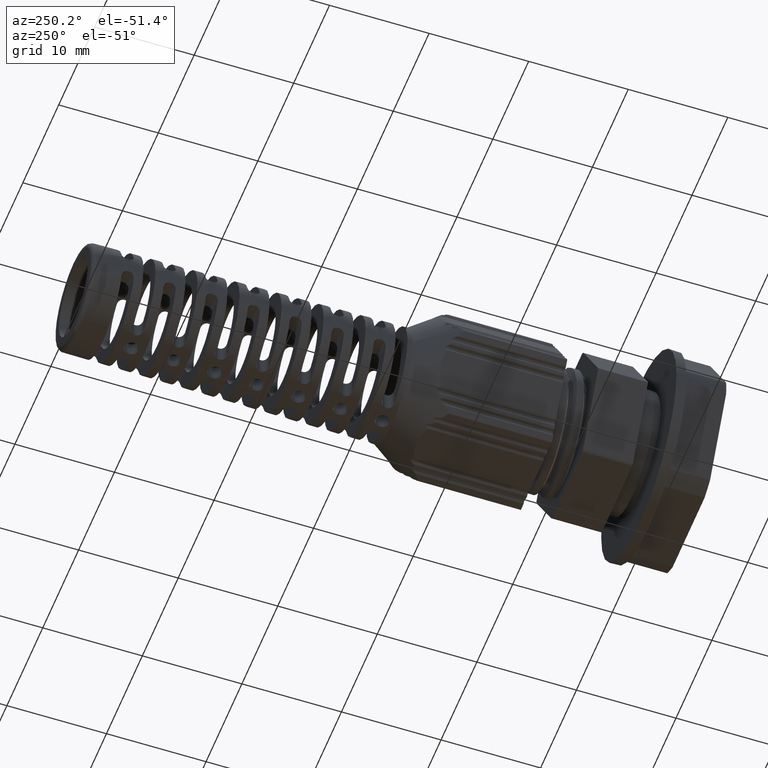
[diagram: clean part render]
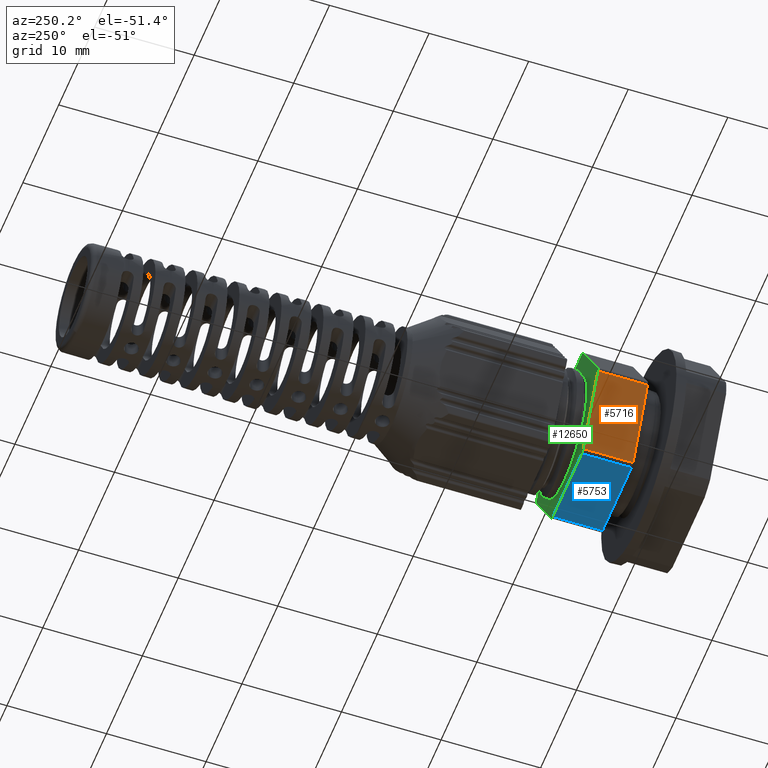
[diagram: same view with three faces highlighted in distinct colors, each labeled with its STEP entity id]
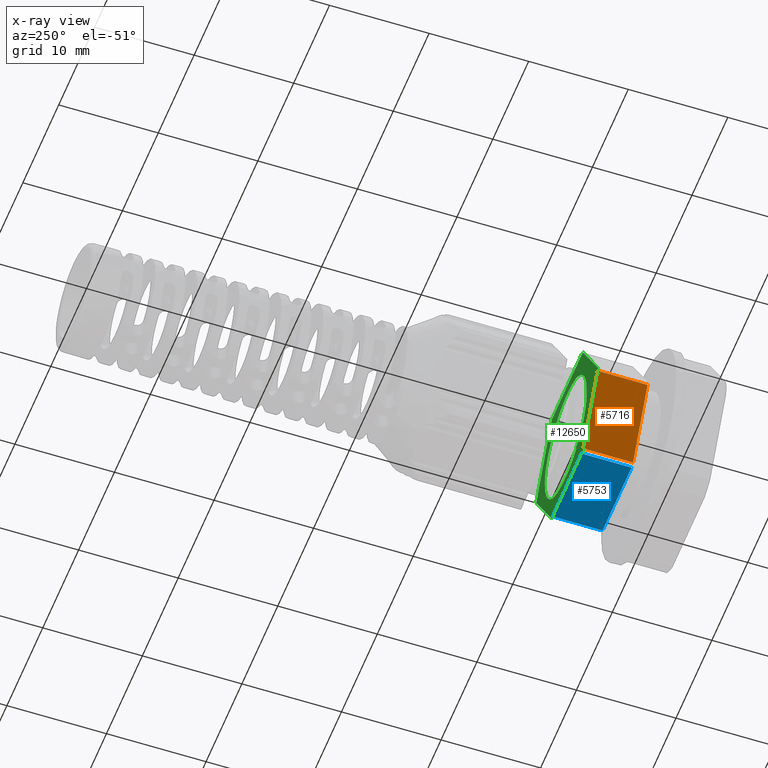
[diagram: x-ray of the same camera — body ghosted, the three highlighted faces saturated]
A machine part, auxiliary view with three faces highlighted in distinct colors.
The next image is the same camera in x-ray (body ghosted, the three faces saturated) — at least one of them is partly hidden behind the body in this view.
Their STEP definitions:

[orange] entity #5716 — the highlighted planar face has unit normal (0.866, -0, 0.5).
#2892 = FACE_OUTER_BOUND ( 'NONE', #20843, .T. ) ;
#2916 = DIRECTION ( 'NONE',  ( 0.8660254037844383700, -0.0000000000000000000, 0.5000000000000004400 ) ) ;
#2925 = DIRECTION ( 'NONE',  ( 0.5000000000000004400, 0.0000000000000000000, -0.8660254037844383700 ) ) ;
#2937 = CARTESIAN_POINT ( 'NONE',  ( -8.660254037844390900, -6.966593736519716800, -4.462418573949797700E-018 ) ) ;
#2939 = PLANE ( 'NONE',  #20506 ) ;
#5716 = ADVANCED_FACE ( 'NONE', ( #2892 ), #2939, .F. ) ;
#6930 = EDGE_CURVE ( 'NONE', #18329, #18250, #10678, .T. ) ;
#6942 = EDGE_CURVE ( 'NONE', #18184, #18329, #10726, .T. ) ;
#6945 = EDGE_CURVE ( 'NONE', #18250, #18301, #10729, .T. ) ;
#6983 = EDGE_CURVE ( 'NONE', #18301, #18184, #11021, .T. ) ;
#7301 = VECTOR ( 'NONE', #10674, 1000.000000000000000 ) ;
#7314 = VECTOR ( 'NONE', #10761, 1000.000000000000100 ) ;
#7331 = VECTOR ( 'NONE', #10733, 1000.000000000000100 ) ;
#7371 = VECTOR ( 'NONE', #11007, 1000.000000000000000 ) ;
#10674 = DIRECTION ( 'NONE',  ( 0.0000000000000000000, 1.000000000000000000, 0.0000000000000000000 ) ) ;
#10678 = LINE ( 'NONE', #10703, #7301 ) ;
#10703 = CARTESIAN_POINT ( 'NONE',  ( -4.474464586219600200, -6.966593736519716800, -7.250000000000000000 ) ) ;
#10726 = LINE ( 'NONE', #10760, #7314 ) ;
#10729 = LINE ( 'NONE', #10730, #7331 ) ;
#10730 = CARTESIAN_POINT ( 'NONE',  ( -4.474464586219598400, -1.876593736519716300, -7.250000000000000000 ) ) ;
#10733 = DIRECTION ( 'NONE',  ( -0.5000000000000006700, 0.0000000000000000000, 0.8660254037844382600 ) ) ;
#10760 = CARTESIAN_POINT ( 'NONE',  ( -8.515916470546983400, -6.876593736519719600, -0.2499999999999994700 ) ) ;
#10761 = DIRECTION ( 'NONE',  ( 0.5000000000000002200, 0.0000000000000000000, -0.8660254037844384900 ) ) ;
#10983 = CARTESIAN_POINT ( 'NONE',  ( -8.515916470546985200, -6.966593736519716800, -0.2500000000000004400 ) ) ;
#11007 = DIRECTION ( 'NONE',  ( -0.0000000000000000000, -1.000000000000000000, -0.0000000000000000000 ) ) ;
#11021 = LINE ( 'NONE', #10983, #7371 ) ;
#16820 = ORIENTED_EDGE ( 'NONE', *, *, #6983, .F. ) ;
#16821 = ORIENTED_EDGE ( 'NONE', *, *, #6945, .F. ) ;
#16846 = ORIENTED_EDGE ( 'NONE', *, *, #6942, .F. ) ;
#18184 = VERTEX_POINT ( 'NONE', #20301 ) ;
#18250 = VERTEX_POINT ( 'NONE', #20344 ) ;
#18301 = VERTEX_POINT ( 'NONE', #20251 ) ;
#18329 = VERTEX_POINT ( 'NONE', #20390 ) ;
#20251 = CARTESIAN_POINT ( 'NONE',  ( -8.515916470546985200, -1.876593736519716300, -0.2500000000000000000 ) ) ;
#20301 = CARTESIAN_POINT ( 'NONE',  ( -8.515916470546983400, -6.876593736519719600, -0.2499999999999985300 ) ) ;
#20344 = CARTESIAN_POINT ( 'NONE',  ( -4.474464586219597500, -1.876593736519716300, -7.249999999999999100 ) ) ;
#20390 = CARTESIAN_POINT ( 'NONE',  ( -4.474464586219600200, -6.876593736519719600, -7.250000000000000900 ) ) ;
#20506 = AXIS2_PLACEMENT_3D ( 'NONE', #2937, #2916, #2925 ) ;
#20802 = ORIENTED_EDGE ( 'NONE', *, *, #6930, .F. ) ;
#20843 = EDGE_LOOP ( 'NONE', ( #16846, #16820, #16821, #20802 ) ) ;

[blue] entity #5753 — the highlighted planar face has unit normal (-0, 0, 1).
#3155 = FACE_OUTER_BOUND ( 'NONE', #20869, .T. ) ;
#3222 = DIRECTION ( 'NONE',  ( 1.000000000000000000, 0.0000000000000000000, 2.003086131649545700E-016 ) ) ;
#3245 = DIRECTION ( 'NONE',  ( -2.003086131649545700E-016, 0.0000000000000000000, 1.000000000000000000 ) ) ;
#3260 = CARTESIAN_POINT ( 'NONE',  ( -4.330127018922190100, -6.966593736519716800, -7.500000000000000000 ) ) ;
#3261 = PLANE ( 'NONE',  #20555 ) ;
#5753 = ADVANCED_FACE ( 'NONE', ( #3155 ), #3261, .F. ) ;
#6931 = EDGE_CURVE ( 'NONE', #18204, #18176, #10649, .T. ) ;
#6967 = EDGE_CURVE ( 'NONE', #18333, #18139, #10865, .T. ) ;
#6981 = EDGE_CURVE ( 'NONE', #18176, #18333, #10986, .T. ) ;
#6986 = EDGE_CURVE ( 'NONE', #18139, #18204, #11016, .T. ) ;
#7299 = VECTOR ( 'NONE', #10690, 1000.000000000000000 ) ;
#7349 = VECTOR ( 'NONE', #10981, 1000.000000000000000 ) ;
#7356 = VECTOR ( 'NONE', #10908, 1000.000000000000000 ) ;
#7364 = VECTOR ( 'NONE', #10999, 1000.000000000000000 ) ;
#10649 = LINE ( 'NONE', #10706, #7299 ) ;
#10690 = DIRECTION ( 'NONE',  ( -0.0000000000000000000, -1.000000000000000000, 0.0000000000000000000 ) ) ;
#10706 = CARTESIAN_POINT ( 'NONE',  ( -4.041451884327377000, -6.966593736519716800, -7.500000000000000000 ) ) ;
#10865 = LINE ( 'NONE', #10898, #7356 ) ;
#10898 = CARTESIAN_POINT ( 'NONE',  ( 4.041451884327383200, -6.966593736519716800, -7.499999999999998200 ) ) ;
#10908 = DIRECTION ( 'NONE',  ( 0.0000000000000000000, 1.000000000000000000, -0.0000000000000000000 ) ) ;
#10979 = CARTESIAN_POINT ( 'NONE',  ( 4.041451884327383200, -1.876593736519716300, -7.499999999999998200 ) ) ;
#10981 = DIRECTION ( 'NONE',  ( -1.000000000000000000, 0.0000000000000000000, -2.146163712481656400E-016 ) ) ;
#10986 = LINE ( 'NONE', #11012, #7364 ) ;
#10999 = DIRECTION ( 'NONE',  ( 1.000000000000000000, 0.0000000000000000000, 2.146163712481656400E-016 ) ) ;
#11012 = CARTESIAN_POINT ( 'NONE',  ( -4.041451884327377000, -6.876593736519719600, -7.500000000000000000 ) ) ;
#11016 = LINE ( 'NONE', #10979, #7349 ) ;
#16823 = ORIENTED_EDGE ( 'NONE', *, *, #6981, .F. ) ;
#18139 = VERTEX_POINT ( 'NONE', #20231 ) ;
#18176 = VERTEX_POINT ( 'NONE', #20187 ) ;
#18204 = VERTEX_POINT ( 'NONE', #20336 ) ;
#18333 = VERTEX_POINT ( 'NONE', #20427 ) ;
#20187 = CARTESIAN_POINT ( 'NONE',  ( -4.041451884327377000, -6.876593736519719600, -7.500000000000000000 ) ) ;
#20231 = CARTESIAN_POINT ( 'NONE',  ( 4.041451884327383200, -1.876593736519716300, -7.499999999999998200 ) ) ;
#20336 = CARTESIAN_POINT ( 'NONE',  ( -4.041451884327377000, -1.876593736519716300, -7.500000000000000000 ) ) ;
#20427 = CARTESIAN_POINT ( 'NONE',  ( 4.041451884327383200, -6.876593736519719600, -7.499999999999998200 ) ) ;
#20555 = AXIS2_PLACEMENT_3D ( 'NONE', #3260, #3245, #3222 ) ;
#20796 = ORIENTED_EDGE ( 'NONE', *, *, #6967, .F. ) ;
#20800 = ORIENTED_EDGE ( 'NONE', *, *, #6931, .F. ) ;
#20801 = ORIENTED_EDGE ( 'NONE', *, *, #6986, .F. ) ;
#20869 = EDGE_LOOP ( 'NONE', ( #16823, #20800, #20801, #20796 ) ) ;

[green] entity #12650 — the highlighted planar face has unit normal (0, 1, 0).
#25 = B_SPLINE_CURVE_WITH_KNOTS ( 'NONE', 3,
 ( #8672, #8686, #8673, #8655, #8642, #8658, #8665, #8687, #8675, #8662, #8693, #8694, #8676, #8669, #8638, #8660, #8677, #8641, #8678, #8680, #8640, #8643, #8644, #8645, #8663, #8646, #8656, #8648, #8664, #8649, #8650, #8651, #8652, #8653, #8713, #8710, #8738, #8696, #8742, #8695 ),
 .UNSPECIFIED., .F., .F.,
 ( 4, 2, 2, 2, 2, 2, 2, 2, 2, 2, 2, 2, 2, 2, 2, 2, 2, 2, 2, 4 ),
 ( 0.0000000000000000000, 0.001118475817211991100, 0.002236951634423982100, 0.003355427451635973200, 0.003914665360241968500, 0.004473903268847964300, 0.005592379086059955800, 0.006710854903271948200, 0.007829330720483938800, 0.008947806537695932000, 0.01006628235490792500, 0.01118475817211991700, 0.01174399608072591300, 0.01230323398933190800, 0.01342170980654390000, 0.01398094771514989600, 0.01454018562375589100, 0.01565866144096788100, 0.01677713725817987100, 0.01789561307539186400 ),
 .UNSPECIFIED. ) ;
#44 = B_SPLINE_CURVE_WITH_KNOTS ( 'NONE', 3,
 ( #8294, #8277, #8283, #8284, #8269, #8288, #8295, #8296, #8298, #8344, #8355, #8312, #8313, #8351 ),
 .UNSPECIFIED., .F., .F.,
 ( 4, 2, 2, 2, 2, 2, 4 ),
 ( 2.966130794080888300E-014, 0.001509788860705730400, 0.002264683291043765000, 0.003019577721381800100, 0.004529366582057869700, 0.005284261012395905600, 0.006039155442733941600 ),
 .UNSPECIFIED. ) ;
#45 = B_SPLINE_CURVE_WITH_KNOTS ( 'NONE', 3,
 ( #8768, #8792, #8793, #8782, #8774, #8788, #8765, #8773, #8750, #8778, #8779, #8794, #8776, #8766, #8775, #8777 ),
 .UNSPECIFIED., .F., .F.,
 ( 4, 2, 2, 2, 2, 2, 2, 4 ),
 ( 0.0000000000000000000, 0.001865784484746567900, 0.002798676727119851200, 0.003731568969493134900, 0.004664461211866418500, 0.005597353454239702500, 0.006530245696612987400, 0.007463137938986271400 ),
 .UNSPECIFIED. ) ;
#865 = ORIENTED_EDGE ( 'NONE', *, *, #6149, .F. ) ;
#891 = ORIENTED_EDGE ( 'NONE', *, *, #6046, .F. ) ;
#894 = ORIENTED_EDGE ( 'NONE', *, *, #6945, .T. ) ;
#898 = ORIENTED_EDGE ( 'NONE', *, *, #6982, .T. ) ;
#931 = ORIENTED_EDGE ( 'NONE', *, *, #6953, .T. ) ;
#934 = ORIENTED_EDGE ( 'NONE', *, *, #6938, .T. ) ;
#936 = ORIENTED_EDGE ( 'NONE', *, *, #6926, .T. ) ;
#938 = ORIENTED_EDGE ( 'NONE', *, *, #6962, .T. ) ;
#947 = ORIENTED_EDGE ( 'NONE', *, *, #13072, .T. ) ;
#951 = ORIENTED_EDGE ( 'NONE', *, *, #6987, .T. ) ;
#952 = ORIENTED_EDGE ( 'NONE', *, *, #6980, .T. ) ;
#954 = ORIENTED_EDGE ( 'NONE', *, *, #6986, .T. ) ;
#958 = ORIENTED_EDGE ( 'NONE', *, *, #6985, .T. ) ;
#959 = ORIENTED_EDGE ( 'NONE', *, *, #6969, .T. ) ;
#966 = ORIENTED_EDGE ( 'NONE', *, *, #6964, .T. ) ;
#974 = ORIENTED_EDGE ( 'NONE', *, *, #6141, .F. ) ;
#5063 = CIRCLE ( 'NONE', #5069, 5.450000000000002000 ) ;
#5069 = AXIS2_PLACEMENT_3D ( 'NONE', #16283, #16248, #16278 ) ;
#6046 = EDGE_CURVE ( 'NONE', #18447, #17328, #44, .T. ) ;
#6141 = EDGE_CURVE ( 'NONE', #17328, #17390, #25, .T. ) ;
#6149 = EDGE_CURVE ( 'NONE', #17390, #18399, #45, .T. ) ;
#6495 = AXIS2_PLACEMENT_3D ( 'NONE', #15211, #15188, #15186 ) ;
#6926 = EDGE_CURVE ( 'NONE', #18137, #18149, #7298, .T. ) ;
#6938 = EDGE_CURVE ( 'NONE', #18288, #18137, #10720, .T. ) ;
#6945 = EDGE_CURVE ( 'NONE', #18250, #18301, #10729, .T. ) ;
#6953 = EDGE_CURVE ( 'NONE', #18286, #18335, #7326, .T. ) ;
#6962 = EDGE_CURVE ( 'NONE', #18141, #18286, #10830, .T. ) ;
#6964 = EDGE_CURVE ( 'NONE', #18149, #18331, #10854, .T. ) ;
#6969 = EDGE_CURVE ( 'NONE', #18204, #18250, #7369, .T. ) ;
#6980 = EDGE_CURVE ( 'NONE', #18125, #18288, #7357, .T. ) ;
#6982 = EDGE_CURVE ( 'NONE', #18331, #18139, #7385, .T. ) ;
#6985 = EDGE_CURVE ( 'NONE', #18301, #18141, #7341, .T. ) ;
#6986 = EDGE_CURVE ( 'NONE', #18139, #18204, #11016, .T. ) ;
#6987 = EDGE_CURVE ( 'NONE', #18335, #18125, #10990, .T. ) ;
#7298 = CIRCLE ( 'NONE', #7300, 0.5000000000000011100 ) ;
#7300 = AXIS2_PLACEMENT_3D ( 'NONE', #10624, #10664, #10626 ) ;
#7313 = VECTOR ( 'NONE', #10752, 1000.000000000000200 ) ;
#7326 = CIRCLE ( 'NONE', #7328, 0.5000000000000013300 ) ;
#7328 = AXIS2_PLACEMENT_3D ( 'NONE', #10778, #10789, #10779 ) ;
#7331 = VECTOR ( 'NONE', #10733, 1000.000000000000100 ) ;
#7334 = AXIS2_PLACEMENT_3D ( 'NONE', #11014, #10991, #11009 ) ;
#7335 = AXIS2_PLACEMENT_3D ( 'NONE', #10989, #10992, #10993 ) ;
#7339 = VECTOR ( 'NONE', #10907, 1000.000000000000100 ) ;
#7341 = CIRCLE ( 'NONE', #7335, 0.5000000000000017800 ) ;
#7349 = VECTOR ( 'NONE', #10981, 1000.000000000000000 ) ;
#7357 = CIRCLE ( 'NONE', #7334, 0.5000000000000013300 ) ;
#7368 = VECTOR ( 'NONE', #11077, 1000.000000000000000 ) ;
#7369 = CIRCLE ( 'NONE', #7373, 0.5000000000000013300 ) ;
#7373 = AXIS2_PLACEMENT_3D ( 'NONE', #10909, #10903, #10904 ) ;
#7378 = AXIS2_PLACEMENT_3D ( 'NONE', #10978, #10995, #11025 ) ;
#7382 = VECTOR ( 'NONE', #10839, 1000.000000000000100 ) ;
#7385 = CIRCLE ( 'NONE', #7378, 0.5000000000000004400 ) ;
#8269 = CARTESIAN_POINT ( 'NONE',  ( -5.052525171718411200, -1.876593736519715600, 2.725551681369611700 ) ) ;
#8277 = CARTESIAN_POINT ( 'NONE',  ( -5.400522535838071300, -1.876593736519716300, 1.251446419722394200 ) ) ;
#8283 = CARTESIAN_POINT ( 'NONE',  ( -5.334680694127822400, -1.876593736519716500, 1.750702120231126600 ) ) ;
#8284 = CARTESIAN_POINT ( 'NONE',  ( -5.136291302282396400, -1.876593736519716700, 2.482839622040944300 ) ) ;
#8288 = CARTESIAN_POINT ( 'NONE',  ( -4.855149845458689700, -1.876593736519715800, 3.191575346864452100 ) ) ;
#8294 = CARTESIAN_POINT ( 'NONE',  ( -5.399399570405622100, -1.876593736519716100, 0.7409347333629310300 ) ) ;
#8295 = CARTESIAN_POINT ( 'NONE',  ( -4.741407872960631500, -1.876593736519715200, 3.416221813085697600 ) ) ;
#8296 = CARTESIAN_POINT ( 'NONE',  ( -4.355517749744714200, -1.876593736519715000, 4.065342241823773700 ) ) ;
#8298 = CARTESIAN_POINT ( 'NONE',  ( -4.037329616128909400, -1.876593736519716100, 4.470326232991245900 ) ) ;
#8312 = CARTESIAN_POINT ( 'NONE',  ( -2.917176707469380400, -1.876593736519715600, 5.485278763288281600 ) ) ;
#8313 = CARTESIAN_POINT ( 'NONE',  ( -2.706977998931548800, -1.876593736519711400, 5.630339780015961400 ) ) ;
#8344 = CARTESIAN_POINT ( 'NONE',  ( -3.503276059704807800, -1.876593736519716100, 5.005983523393983800 ) ) ;
#8351 = CARTESIAN_POINT ( 'NONE',  ( -2.488451054552812500, -1.876593736519716500, 5.761798474046722500 ) ) ;
#8355 = CARTESIAN_POINT ( 'NONE',  ( -3.314906790975319200, -1.876593736519716500, 5.173326074699804000 ) ) ;
#8638 = CARTESIAN_POINT ( 'NONE',  ( 3.554703707871329900, -1.876593736519716700, 5.185723124182922900 ) ) ;
#8640 = CARTESIAN_POINT ( 'NONE',  ( 5.695719576980027700, -1.876593736519716500, 2.662618034241529300 ) ) ;
#8641 = CARTESIAN_POINT ( 'NONE',  ( 4.914198055728606500, -1.876593736519715800, 3.922019101776019800 ) ) ;
#8642 = CARTESIAN_POINT ( 'NONE',  ( -0.6892213112795773100, -1.876593736519715200, 6.249230118819495400 ) ) ;
#8643 = CARTESIAN_POINT ( 'NONE',  ( 5.971762659988617500, -1.876593736519716300, 1.966928323205356700 ) ) ;
#8644 = CARTESIAN_POINT ( 'NONE',  ( 6.077072389648182400, -1.876593736519715800, 1.611498729015806000 ) ) ;
#8645 = CARTESIAN_POINT ( 'NONE',  ( 6.187547614482095800, -1.876593736519715800, 1.067343194104856100 ) ) ;
#8646 = CARTESIAN_POINT ( 'NONE',  ( 6.257901405293715400, -1.876593736519714300, 0.5138848852103562500 ) ) ;
#8648 = CARTESIAN_POINT ( 'NONE',  ( 6.282944084462077900, -1.876593736519716100, -0.2337753326607063500 ) ) ;
#8649 = CARTESIAN_POINT ( 'NONE',  ( 6.172301428384172600, -1.876593736519716300, -1.152261744228568300 ) ) ;
#8650 = CARTESIAN_POINT ( 'NONE',  ( 6.135557969663302900, -1.876593736519716500, -1.334351826318847600 ) ) ;
#8651 = CARTESIAN_POINT ( 'NONE',  ( 6.045393487557918300, -1.876593736519716300, -1.696697962541244400 ) ) ;
#8652 = CARTESIAN_POINT ( 'NONE',  ( 5.991791837136968700, -1.876593736519716900, -1.877183367533572300 ) ) ;
#8653 = CARTESIAN_POINT ( 'NONE',  ( 5.809039266055118700, -1.876593736519717200, -2.405094415160653000 ) ) ;
#8655 = CARTESIAN_POINT ( 'NONE',  ( -1.062035783165733000, -1.876593736519716500, 6.196961296860791900 ) ) ;
#8656 = CARTESIAN_POINT ( 'NONE',  ( 6.270508446348563900, -1.876593736519715600, 0.3259844670453795300 ) ) ;
#8658 = CARTESIAN_POINT ( 'NONE',  ( 0.05061025799317830900, -1.876593736519715800, 6.286918298790634000 ) ) ;
#8660 = CARTESIAN_POINT ( 'NONE',  ( 4.139455613686406500, -1.876593736519717200, 4.732076710468652100 ) ) ;
#8662 = CARTESIAN_POINT ( 'NONE',  ( 1.525665501702999000, -1.876593736519715200, 6.090791667164650900 ) ) ;
#8663 = CARTESIAN_POINT ( 'NONE',  ( 6.216410063138072300, -1.876593736519715000, 0.8841117579471632300 ) ) ;
#8664 = CARTESIAN_POINT ( 'NONE',  ( 6.258109887339228900, -1.876593736519716300, -0.6033058253278021900 ) ) ;
#8665 = CARTESIAN_POINT ( 'NONE',  ( 0.4207383157798153000, -1.876593736519716300, 6.273201695416734200 ) ) ;
#8669 = CARTESIAN_POINT ( 'NONE',  ( 3.240503069813335900, -1.876593736519715800, 5.387944457656383100 ) ) ;
#8672 = CARTESIAN_POINT ( 'NONE',  ( -2.488451054552812500, -1.876593736519716500, 5.761798474046722500 ) ) ;
#8673 = CARTESIAN_POINT ( 'NONE',  ( -1.789599931596410000, -1.876593736519716500, 6.027236630857062000 ) ) ;
#8675 = CARTESIAN_POINT ( 'NONE',  ( 1.161808466904033800, -1.876593736519715400, 6.170542880664481100 ) ) ;
#8676 = CARTESIAN_POINT ( 'NONE',  ( 2.577171796902246700, -1.876593736519716300, 5.734892427370492200 ) ) ;
#8677 = CARTESIAN_POINT ( 'NONE',  ( 4.411768260136830700, -1.876593736519716500, 4.479718426918373600 ) ) ;
#8678 = CARTESIAN_POINT ( 'NONE',  ( 5.136809741787388400, -1.876593736519716500, 3.625028451547269300 ) ) ;
#8680 = CARTESIAN_POINT ( 'NONE',  ( 5.527204675992422300, -1.876593736519716100, 2.996273363285885800 ) ) ;
#8686 = CARTESIAN_POINT ( 'NONE',  ( -2.143857352865421000, -1.876593736519716500, 5.910624324901931500 ) ) ;
#8687 = CARTESIAN_POINT ( 'NONE',  ( 0.9762564218836055100, -1.876593736519716900, 6.202618494554642800 ) ) ;
#8693 = CARTESIAN_POINT ( 'NONE',  ( 1.704888445134419100, -1.876593736519716500, 6.043038990655500900 ) ) ;
#8694 = CARTESIAN_POINT ( 'NONE',  ( 2.234592235372008700, -1.876593736519716700, 5.876591361840697300 ) ) ;
#8695 = CARTESIAN_POINT ( 'NONE',  ( 4.060546699740253700, -1.876593736519716500, -4.785673495513528100 ) ) ;
#8696 = CARTESIAN_POINT ( 'NONE',  ( 4.608143411900218000, -1.876593736519712700, -4.277240263392851500 ) ) ;
#8710 = CARTESIAN_POINT ( 'NONE',  ( 5.295062724667002600, -1.876593736519718100, -3.389763699291423300 ) ) ;
#8713 = CARTESIAN_POINT ( 'NONE',  ( 5.657351565106617700, -1.876593736519717800, -2.742728652998230200 ) ) ;
#8738 = CARTESIAN_POINT ( 'NONE',  ( 5.082207241546608000, -1.876593736519712700, -3.701478019575360700 ) ) ;
#8742 = CARTESIAN_POINT ( 'NONE',  ( 4.346761664098077700, -1.876593736519716700, -4.542825915119888900 ) ) ;
#8750 = CARTESIAN_POINT ( 'NONE',  ( -0.1038837109012462900, -1.876593736519715800, -5.804279268891361800 ) ) ;
#8765 = CARTESIAN_POINT ( 'NONE',  ( 0.8373610269777814800, -1.876593736519742500, -5.844745238059752000 ) ) ;
#8766 = CARTESIAN_POINT ( 'NONE',  ( -2.438937793266402500, -1.876593736519716700, -4.961401960313603300 ) ) ;
#8768 = CARTESIAN_POINT ( 'NONE',  ( 4.060546699740253700, -1.876593736519716500, -4.785673495513528100 ) ) ;
#8773 = CARTESIAN_POINT ( 'NONE',  ( 0.2124412616521112500, -1.876593736519743100, -5.834760372842123600 ) ) ;
#8774 = CARTESIAN_POINT ( 'NONE',  ( 1.764564424219910600, -1.876593736519742300, -5.740848355215216100 ) ) ;
#8775 = CARTESIAN_POINT ( 'NONE',  ( -2.698577856822374200, -1.876593736519713600, -4.785248498867503900 ) ) ;
#8776 = CARTESIAN_POINT ( 'NONE',  ( -1.891553969179055900, -1.876593736519715800, -5.269468461670739700 ) ) ;
#8777 = CARTESIAN_POINT ( 'NONE',  ( -2.943873289402107100, -1.876593736519732500, -4.586513932820000900 ) ) ;
#8778 = CARTESIAN_POINT ( 'NONE',  ( -0.7172660970666706600, -1.876593736519715400, -5.692502959752894200 ) ) ;
#8779 = CARTESIAN_POINT ( 'NONE',  ( -1.017117914402304800, -1.876593736519715000, -5.611865503576460400 ) ) ;
#8782 = CARTESIAN_POINT ( 'NONE',  ( 2.073303270287909900, -1.876593736519715600, -5.674045175501070100 ) ) ;
#8788 = CARTESIAN_POINT ( 'NONE',  ( 1.147773278075810800, -1.876593736519741800, -5.825818200660194200 ) ) ;
#8792 = CARTESIAN_POINT ( 'NONE',  ( 3.537677561290059300, -1.876593736519716300, -5.138701624618925700 ) ) ;
#8793 = CARTESIAN_POINT ( 'NONE',  ( 2.975389725625761100, -1.876593736519716500, -5.404661680042421400 ) ) ;
#8794 = CARTESIAN_POINT ( 'NONE',  ( -1.603136167315534200, -1.876593736519714500, -5.401067995409136700 ) ) ;
#9879 = EDGE_LOOP ( 'NONE', ( #891, #947, #865, #974 ) ) ;
#9921 = EDGE_LOOP ( 'NONE', ( #931, #951, #952, #934, #936, #966, #898, #954, #959, #894, #958, #938 ) ) ;
#10624 = CARTESIAN_POINT ( 'NONE',  ( 8.082903768654762900, -1.876593736519716300, -4.824699667560494700E-015 ) ) ;
#10626 = DIRECTION ( 'NONE',  ( 0.0000000000000000000, 0.0000000000000000000, 1.000000000000000000 ) ) ;
#10664 = DIRECTION ( 'NONE',  ( 0.0000000000000000000, 1.000000000000000000, 0.0000000000000000000 ) ) ;
#10720 = LINE ( 'NONE', #10748, #7313 ) ;
#10729 = LINE ( 'NONE', #10730, #7331 ) ;
#10730 = CARTESIAN_POINT ( 'NONE',  ( -4.474464586219598400, -1.876593736519716300, -7.250000000000000000 ) ) ;
#10733 = DIRECTION ( 'NONE',  ( -0.5000000000000006700, 0.0000000000000000000, 0.8660254037844382600 ) ) ;
#10748 = CARTESIAN_POINT ( 'NONE',  ( 4.474464586219596600, -1.876593736519716300, 7.250000000000000900 ) ) ;
#10752 = DIRECTION ( 'NONE',  ( 0.5000000000000005600, 0.0000000000000000000, -0.8660254037844382600 ) ) ;
#10778 = CARTESIAN_POINT ( 'NONE',  ( -4.041451884327381400, -1.876593736519716300, 6.999999999999999100 ) ) ;
#10779 = DIRECTION ( 'NONE',  ( 0.0000000000000000000, 0.0000000000000000000, 1.000000000000000000 ) ) ;
#10789 = DIRECTION ( 'NONE',  ( 0.0000000000000000000, 1.000000000000000000, 0.0000000000000000000 ) ) ;
#10824 = CARTESIAN_POINT ( 'NONE',  ( 8.515916470546981600, -1.876593736519716300, -0.2500000000000064900 ) ) ;
#10830 = LINE ( 'NONE', #10831, #7382 ) ;
#10831 = CARTESIAN_POINT ( 'NONE',  ( -8.515916470546983400, -1.876593736519716300, 0.2500000000000028300 ) ) ;
#10839 = DIRECTION ( 'NONE',  ( 0.5000000000000002200, 0.0000000000000000000, 0.8660254037844384900 ) ) ;
#10854 = LINE ( 'NONE', #10824, #7339 ) ;
#10903 = DIRECTION ( 'NONE',  ( 0.0000000000000000000, 1.000000000000000000, 0.0000000000000000000 ) ) ;
#10904 = DIRECTION ( 'NONE',  ( 0.0000000000000000000, 0.0000000000000000000, 1.000000000000000000 ) ) ;
#10907 = DIRECTION ( 'NONE',  ( -0.5000000000000003300, 0.0000000000000000000, -0.8660254037844384900 ) ) ;
#10909 = CARTESIAN_POINT ( 'NONE',  ( -4.041451884327377000, -1.876593736519716300, -6.999999999999999100 ) ) ;
#10978 = CARTESIAN_POINT ( 'NONE',  ( 4.041451884327383200, -1.876593736519716300, -6.999999999999997300 ) ) ;
#10979 = CARTESIAN_POINT ( 'NONE',  ( 4.041451884327383200, -1.876593736519716300, -7.499999999999998200 ) ) ;
#10981 = DIRECTION ( 'NONE',  ( -1.000000000000000000, 0.0000000000000000000, -2.146163712481656400E-016 ) ) ;
#10989 = CARTESIAN_POINT ( 'NONE',  ( -8.082903768654762900, -1.876593736519716300, 9.757819552369539900E-016 ) ) ;
#10990 = LINE ( 'NONE', #11030, #7368 ) ;
#10991 = DIRECTION ( 'NONE',  ( 0.0000000000000000000, 1.000000000000000000, 0.0000000000000000000 ) ) ;
#10992 = DIRECTION ( 'NONE',  ( 0.0000000000000000000, 1.000000000000000000, 0.0000000000000000000 ) ) ;
#10993 = DIRECTION ( 'NONE',  ( 0.0000000000000000000, 0.0000000000000000000, 1.000000000000000000 ) ) ;
#10995 = DIRECTION ( 'NONE',  ( 0.0000000000000000000, 1.000000000000000000, 0.0000000000000000000 ) ) ;
#11009 = DIRECTION ( 'NONE',  ( 0.0000000000000000000, 0.0000000000000000000, 1.000000000000000000 ) ) ;
#11014 = CARTESIAN_POINT ( 'NONE',  ( 4.041451884327376100, -1.876593736519716300, 6.999999999999999100 ) ) ;
#11016 = LINE ( 'NONE', #10979, #7349 ) ;
#11025 = DIRECTION ( 'NONE',  ( 0.0000000000000000000, 0.0000000000000000000, 1.000000000000000000 ) ) ;
#11030 = CARTESIAN_POINT ( 'NONE',  ( -4.041451884327381400, -1.876593736519716300, 7.500000000000000000 ) ) ;
#11077 = DIRECTION ( 'NONE',  ( 1.000000000000000000, 0.0000000000000000000, 0.0000000000000000000 ) ) ;
#12650 = ADVANCED_FACE ( 'NONE', ( #15216, #15198 ), #15199, .T. ) ;
#13072 = EDGE_CURVE ( 'NONE', #18447, #18399, #5063, .T. ) ;
#15186 = DIRECTION ( 'NONE',  ( 0.0000000000000000000, -0.0000000000000000000, 1.000000000000000000 ) ) ;
#15188 = DIRECTION ( 'NONE',  ( 0.0000000000000000000, 1.000000000000000000, 0.0000000000000000000 ) ) ;
#15198 = FACE_BOUND ( 'NONE', #9879, .T. ) ;
#15199 = PLANE ( 'NONE',  #6495 ) ;
#15211 = CARTESIAN_POINT ( 'NONE',  ( -4.041451884327381400, -1.876593736519716300, 6.999999999999999100 ) ) ;
#15216 = FACE_OUTER_BOUND ( 'NONE', #9921, .T. ) ;
#16248 = DIRECTION ( 'NONE',  ( -0.0000000000000000000, -1.000000000000000000, -0.0000000000000000000 ) ) ;
#16278 = DIRECTION ( 'NONE',  ( 0.0000000000000000000, 0.0000000000000000000, 1.000000000000000000 ) ) ;
#16283 = CARTESIAN_POINT ( 'NONE',  ( 0.0000000000000000000, -1.876593736519716100, 0.0000000000000000000 ) ) ;
#17328 = VERTEX_POINT ( 'NONE', #19728 ) ;
#17390 = VERTEX_POINT ( 'NONE', #19757 ) ;
#18125 = VERTEX_POINT ( 'NONE', #20204 ) ;
#18137 = VERTEX_POINT ( 'NONE', #20207 ) ;
#18139 = VERTEX_POINT ( 'NONE', #20231 ) ;
#18141 = VERTEX_POINT ( 'NONE', #20244 ) ;
#18149 = VERTEX_POINT ( 'NONE', #20209 ) ;
#18204 = VERTEX_POINT ( 'NONE', #20336 ) ;
#18250 = VERTEX_POINT ( 'NONE', #20344 ) ;
#18286 = VERTEX_POINT ( 'NONE', #20274 ) ;
#18288 = VERTEX_POINT ( 'NONE', #20330 ) ;
#18301 = VERTEX_POINT ( 'NONE', #20251 ) ;
#18331 = VERTEX_POINT ( 'NONE', #20359 ) ;
#18335 = VERTEX_POINT ( 'NONE', #20395 ) ;
#18399 = VERTEX_POINT ( 'NONE', #20374 ) ;
#18447 = VERTEX_POINT ( 'NONE', #20504 ) ;
#19728 = CARTESIAN_POINT ( 'NONE',  ( -2.488451054552812500, -1.876593736519716500, 5.761798474046722500 ) ) ;
#19757 = CARTESIAN_POINT ( 'NONE',  ( 4.060546699740253700, -1.876593736519716500, -4.785673495513528100 ) ) ;
#20204 = CARTESIAN_POINT ( 'NONE',  ( 4.041451884327376100, -1.876593736519716300, 7.500000000000000000 ) ) ;
#20207 = CARTESIAN_POINT ( 'NONE',  ( 8.515916470546985200, -1.876593736519716300, 0.2499999999999968600 ) ) ;
#20209 = CARTESIAN_POINT ( 'NONE',  ( 8.515916470546983400, -1.876593736519716300, -0.2500000000000069900 ) ) ;
#20231 = CARTESIAN_POINT ( 'NONE',  ( 4.041451884327383200, -1.876593736519716300, -7.499999999999998200 ) ) ;
#20244 = CARTESIAN_POINT ( 'NONE',  ( -8.515916470546983400, -1.876593736519716300, 0.2500000000000030500 ) ) ;
#20251 = CARTESIAN_POINT ( 'NONE',  ( -8.515916470546985200, -1.876593736519716300, -0.2500000000000000000 ) ) ;
#20274 = CARTESIAN_POINT ( 'NONE',  ( -4.474464586219602900, -1.876593736519716300, 7.249999999999999100 ) ) ;
#20330 = CARTESIAN_POINT ( 'NONE',  ( 4.474464586219595800, -1.876593736519716300, 7.250000000000000900 ) ) ;
#20336 = CARTESIAN_POINT ( 'NONE',  ( -4.041451884327377000, -1.876593736519716300, -7.500000000000000000 ) ) ;
#20344 = CARTESIAN_POINT ( 'NONE',  ( -4.474464586219597500, -1.876593736519716300, -7.249999999999999100 ) ) ;
#20359 = CARTESIAN_POINT ( 'NONE',  ( 4.474464586219602900, -1.876593736519716300, -7.249999999999997300 ) ) ;
#20374 = CARTESIAN_POINT ( 'NONE',  ( -2.943873289402107100, -1.876593736519732500, -4.586513932820000900 ) ) ;
#20395 = CARTESIAN_POINT ( 'NONE',  ( -4.041451884327381400, -1.876593736519716300, 7.500000000000000000 ) ) ;
#20504 = CARTESIAN_POINT ( 'NONE',  ( -5.399399570405622100, -1.876593736519716100, 0.7409347333629310300 ) ) ;